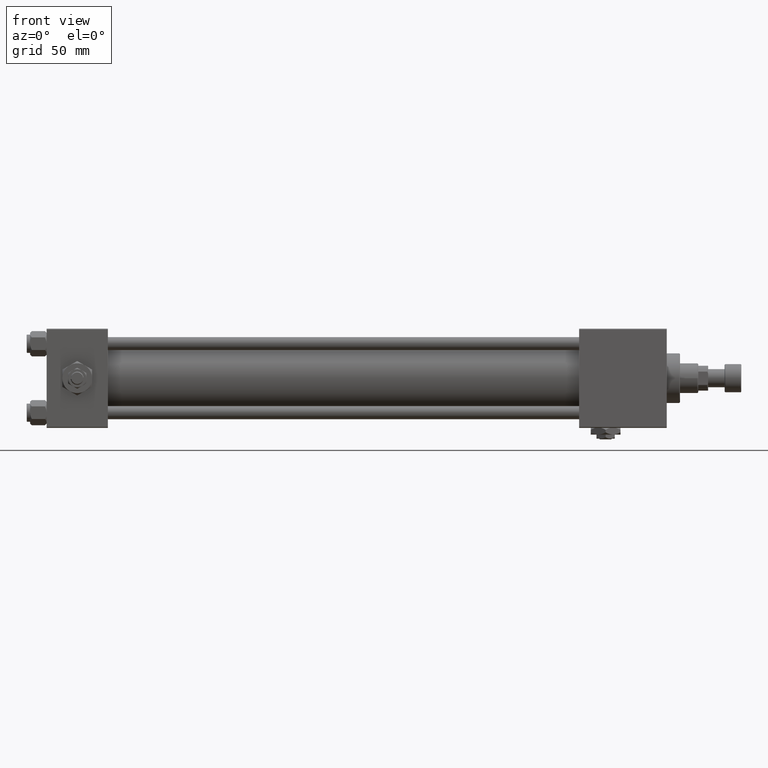
[diagram: clean part render]
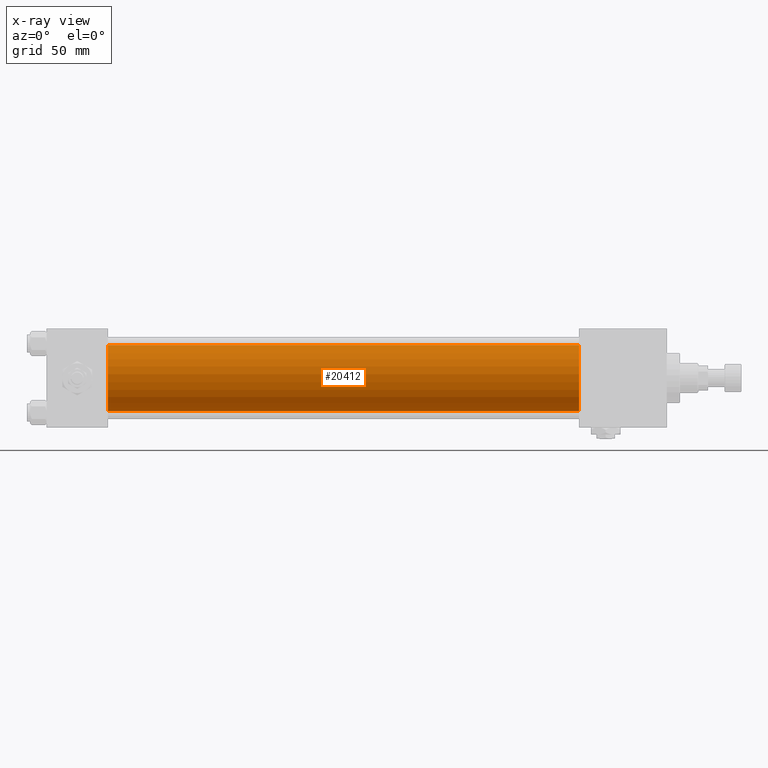
[diagram: x-ray — body ghosted, one internal face saturated and labeled with its STEP entity id]
A machine part, front view, then the same camera in x-ray: the body is ghosted and one INTERNAL B-rep face — a face not visible from any outside direction — is saturated and labeled: STEP entity #20412.
In plain terms, the highlighted cylindrical surface (edge-blend (fillet) strip) has radius 20 mm, axis along (-1, -0, -0).
Its self-contained STEP definition (entity closure, byte-faithful):
#683 = EDGE_CURVE ( 'NONE', #15103, #36348, #46329, .T. ) ;
#2480 = EDGE_CURVE ( 'NONE', #15103, #39058, #27282, .T. ) ;
#4204 = CARTESIAN_POINT ( 'NONE',  ( 321.9999999999999432, -1.527916156705042519E-16, -20.00000000000000000 ) ) ;
#4663 = VECTOR ( 'NONE', #20978, 1000.000000000000000 ) ;
#5902 = DIRECTION ( 'NONE',  ( 1.000000000000000000, 0.000000000000000000, 0.000000000000000000 ) ) ;
#7674 = CIRCLE ( 'NONE', #24684, 20.00000000000000000 ) ;
#8715 = DIRECTION ( 'NONE',  ( 1.000000000000000000, 0.000000000000000000, 0.000000000000000000 ) ) ;
#8939 = EDGE_LOOP ( 'NONE', ( #26582, #21455, #43417, #32492 ) ) ;
#10116 = CYLINDRICAL_SURFACE ( 'NONE', #20349, 20.00000000000000000 ) ;
#15103 = VERTEX_POINT ( 'NONE', #35078 ) ;
#18356 = CARTESIAN_POINT ( 'NONE',  ( 321.9999999999999432, -1.527916156705042519E-16, -20.00000000000000000 ) ) ;
#20349 = AXIS2_PLACEMENT_3D ( 'NONE', #50572, #42604, #30626 ) ;
#20412 = ADVANCED_FACE ( 'NONE', ( #46857 ), #10116, .F. ) ;
#20966 = CARTESIAN_POINT ( 'NONE',  ( 321.9999999999999432, -2.602085213965210642E-15, 0.000000000000000000 ) ) ;
#20978 = DIRECTION ( 'NONE',  ( -1.000000000000000000, -0.000000000000000000, -0.000000000000000000 ) ) ;
#21455 = ORIENTED_EDGE ( 'NONE', *, *, #36339, .T. ) ;
#22228 = EDGE_CURVE ( 'NONE', #36348, #25997, #7674, .T. ) ;
#24684 = AXIS2_PLACEMENT_3D ( 'NONE', #42125, #5902, #29364 ) ;
#24953 = DIRECTION ( 'NONE',  ( 0.000000000000000000, 0.000000000000000000, -1.000000000000000000 ) ) ;
#25633 = AXIS2_PLACEMENT_3D ( 'NONE', #20966, #8715, #24953 ) ;
#25997 = VERTEX_POINT ( 'NONE', #44373 ) ;
#26346 = DIRECTION ( 'NONE',  ( -1.000000000000000000, -0.000000000000000000, -0.000000000000000000 ) ) ;
#26582 = ORIENTED_EDGE ( 'NONE', *, *, #2480, .T. ) ;
#27282 = CIRCLE ( 'NONE', #25633, 20.00000000000000000 ) ;
#29364 = DIRECTION ( 'NONE',  ( 0.000000000000000000, 0.000000000000000000, -1.000000000000000000 ) ) ;
#30620 = CARTESIAN_POINT ( 'NONE',  ( 321.9999999999999432, -2.602085213965210642E-15, 20.00000000000000000 ) ) ;
#30626 = DIRECTION ( 'NONE',  ( 0.000000000000000000, 0.000000000000000000, 1.000000000000000000 ) ) ;
#30695 = VECTOR ( 'NONE', #26346, 1000.000000000000000 ) ;
#32492 = ORIENTED_EDGE ( 'NONE', *, *, #683, .F. ) ;
#35078 = CARTESIAN_POINT ( 'NONE',  ( 321.9999999999999432, -2.602085213965210642E-15, 20.00000000000000000 ) ) ;
#36339 = EDGE_CURVE ( 'NONE', #39058, #25997, #37232, .T. ) ;
#36348 = VERTEX_POINT ( 'NONE', #49963 ) ;
#37232 = LINE ( 'NONE', #4204, #4663 ) ;
#39058 = VERTEX_POINT ( 'NONE', #18356 ) ;
#42125 = CARTESIAN_POINT ( 'NONE',  ( 37.00000000000000000, -2.602085213965210642E-15, 0.000000000000000000 ) ) ;
#42604 = DIRECTION ( 'NONE',  ( -1.000000000000000000, -0.000000000000000000, -0.000000000000000000 ) ) ;
#43417 = ORIENTED_EDGE ( 'NONE', *, *, #22228, .F. ) ;
#44373 = CARTESIAN_POINT ( 'NONE',  ( 37.00000000000000000, -1.527916156705042519E-16, -20.00000000000000000 ) ) ;
#46329 = LINE ( 'NONE', #30620, #30695 ) ;
#46857 = FACE_OUTER_BOUND ( 'NONE', #8939, .T. ) ;
#49963 = CARTESIAN_POINT ( 'NONE',  ( 37.00000000000000000, -2.602085213965210642E-15, 20.00000000000000000 ) ) ;
#50572 = CARTESIAN_POINT ( 'NONE',  ( 321.9999999999999432, -2.602085213965210642E-15, 0.000000000000000000 ) ) ;